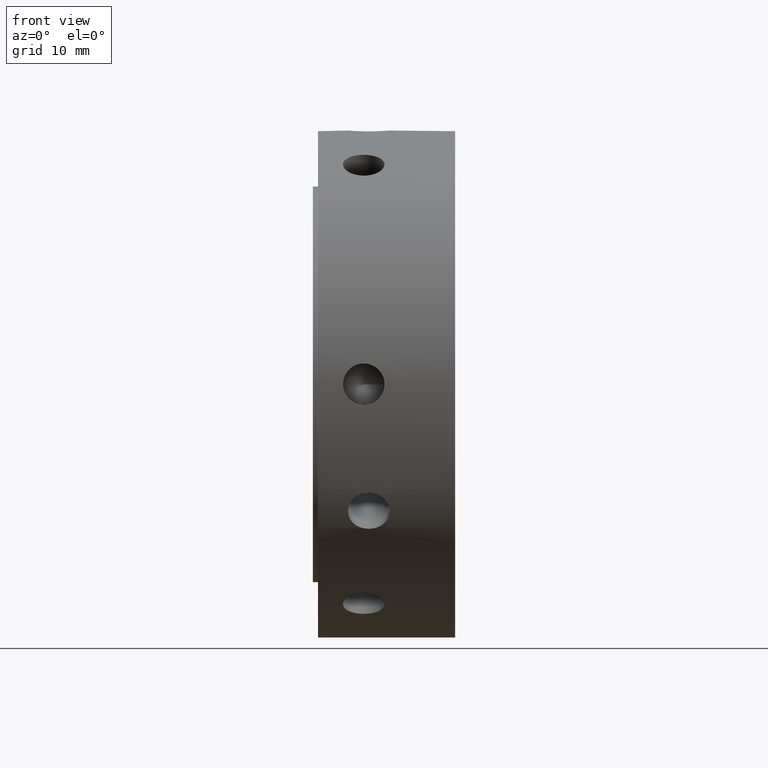
[diagram: clean part render]
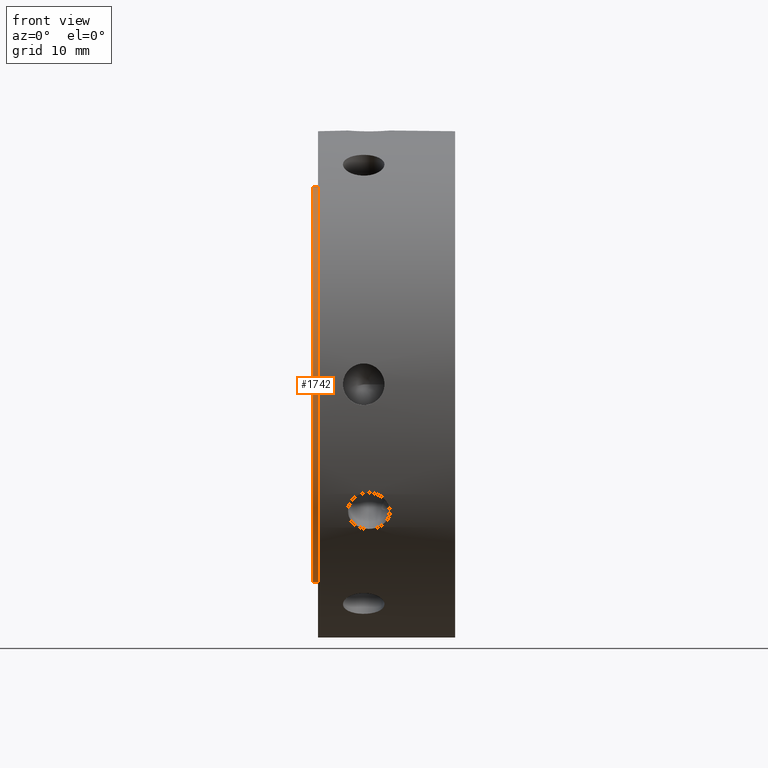
[diagram: same view with one face highlighted and labeled with its STEP entity id]
A machine part, front view. The second image highlights one B-rep face of the part: STEP entity #1742.
In plain terms, the highlighted cylindrical surface (bore or boss wall) has radius 19.5 mm, axis along (1, 0, 0).
Its self-contained STEP definition (entity closure, byte-faithful):
#1708=CARTESIAN_POINT('',(-4.440892E-015,19.5,0.0));
#1709=VERTEX_POINT('',#1708);
#1710=CARTESIAN_POINT('',(-4.440892E-015,0.0,0.0));
#1711=DIRECTION('',(1.0,0.0,0.0));
#1712=DIRECTION('',(0.0,1.0,0.0));
#1713=AXIS2_PLACEMENT_3D('',#1710,#1711,#1712);
#1714=CIRCLE('',#1713,19.5);
#1715=EDGE_CURVE('',#1709,#1709,#1714,.T.);
#1723=CARTESIAN_POINT('',(0.249999999999997,0.0,0.0));
#1724=DIRECTION('',(1.0,0.0,0.0));
#1725=DIRECTION('',(0.0,1.0,0.0));
#1726=AXIS2_PLACEMENT_3D('',#1723,#1724,#1725);
#1727=CYLINDRICAL_SURFACE('',#1726,19.5);
#1728=CARTESIAN_POINT('',(0.499999999999998,19.5,0.0));
#1729=VERTEX_POINT('',#1728);
#1730=CARTESIAN_POINT('',(0.499999999999998,0.0,0.0));
#1731=DIRECTION('',(1.0,0.0,0.0));
#1732=DIRECTION('',(0.0,1.0,0.0));
#1733=AXIS2_PLACEMENT_3D('',#1730,#1731,#1732);
#1734=CIRCLE('',#1733,19.5);
#1735=EDGE_CURVE('',#1729,#1729,#1734,.T.);
#1736=ORIENTED_EDGE('',*,*,#1735,.F.);
#1737=EDGE_LOOP('',(#1736));
#1738=FACE_OUTER_BOUND('',#1737,.T.);
#1739=ORIENTED_EDGE('',*,*,#1715,.T.);
#1740=EDGE_LOOP('',(#1739));
#1741=FACE_BOUND('',#1740,.T.);
#1742=ADVANCED_FACE('',(#1738,#1741),#1727,.T.);